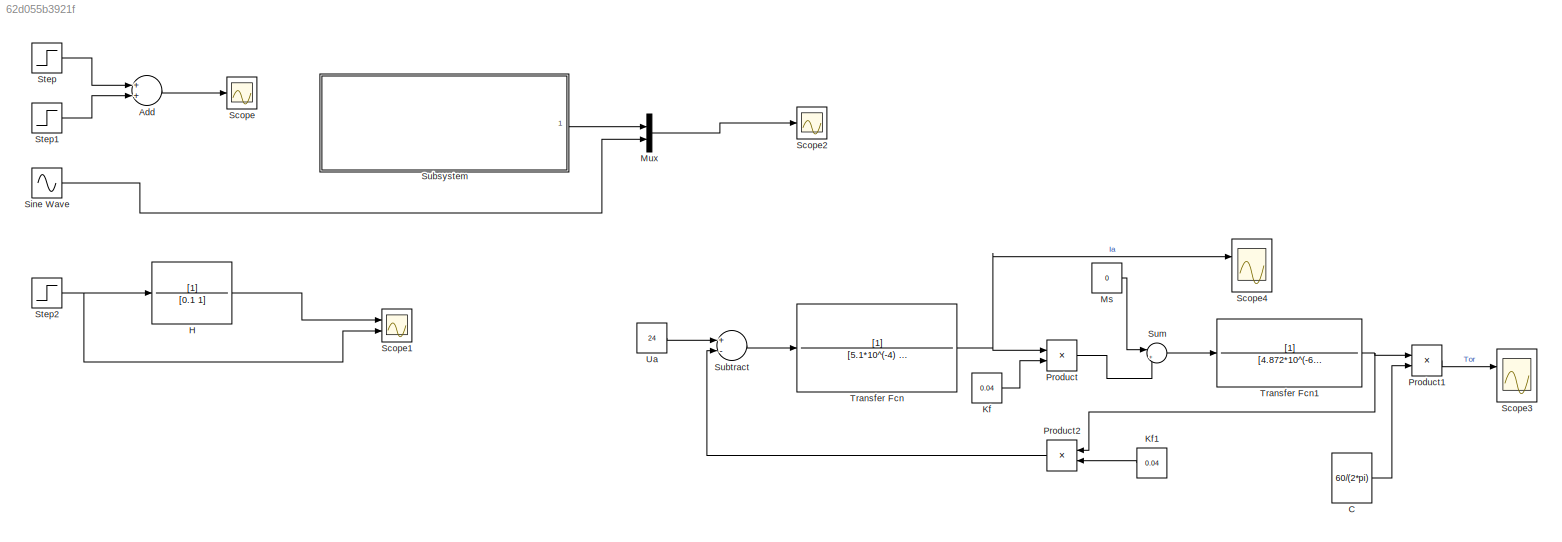
MODEL slx_62d055b3921f
KIND model
CONFIG AbsTol = auto
CONFIG EnableMultiTasking = off
CONFIG FixedStep = auto
CONFIG MaxStep = auto
CONFIG MinStep = auto
CONFIG RelTol = 1e-3
CONFIG SampleTimeConstraint = Unconstrained
CONFIG Solver = VariableStepAuto
CONFIG SolverName = VariableStepAuto
CONFIG StartTime = 0.0
CONFIG StopTime = 0.02
BLOCK [Sum] Add
  InputSameDT = off
  OutDataTypeStr = Inherit: Inherit via internal rule
  Ports = [2, 1]
  SaturateOnIntegerOverflow = off
BLOCK [Constant] C
  Value = 60/(2*pi)
BLOCK [TransferFcn] H 
  Denominator = [0.1 1]
BLOCK [Constant] Kf
  Value = 0.04
BLOCK [Constant] Kf1
  Value = 0.04
BLOCK [Constant] Ms
  Value = 0
BLOCK [Mux] Mux
  DisplayOption = bar
  Inputs = 2
  Ports = [2, 1]
BLOCK [Product] Product
  InputSameDT = off
  OutDataTypeStr = Inherit: Inherit via internal rule
  Ports = [2, 1]
  RndMeth = Floor
  SaturateOnIntegerOverflow = off
BLOCK [Product] Product1
  InputSameDT = off
  OutDataTypeStr = Inherit: Inherit via internal rule
  Ports = [2, 1]
  RndMeth = Floor
  SaturateOnIntegerOverflow = off
BLOCK [Product] Product2
  InputSameDT = off
  OutDataTypeStr = Inherit: Inherit via internal rule
  Ports = [2, 1]
  RndMeth = Floor
  SaturateOnIntegerOverflow = off
BLOCK [Scope] Scope
  Floating = off
  NumInputPorts = 1
  Ports = [1]
  ScopeSpecificationString = Simulink.scopes.TimeScopeBlockCfg('CurrentConfiguration', extmgr.ConfigurationSet(extmgr.Configuration('Core','General UI',true),extmgr.Configuration('Core','Source UI',true),extmgr.Configuration('Sources','WiredSimulink',true),extmgr.Configuration('Visuals','Time Domain',true,'SerializedDisplays',{struct('MinYLimReal','-1.00000','MaxYLimReal','1.00000','YLabelReal','','MinYLimMag','0.00000','MaxY...<+1323ch>
BLOCK [Scope] Scope1
  Floating = off
  NumInputPorts = 2
  Ports = [2]
  ScopeSpecificationString = Simulink.scopes.TimeScopeBlockCfg('CurrentConfiguration', extmgr.ConfigurationSet(extmgr.Configuration('Core','General UI',true),extmgr.Configuration('Core','Source UI',true),extmgr.Configuration('Sources','WiredSimulink',true,'DataLoggingVariableName','ScopeData1'),extmgr.Configuration('Visuals','Time Domain',true,'SerializedDisplays',{struct('MinYLimReal','-1.00000','MaxYLimReal','1.00000','YLab...<+1400ch>
BLOCK [Scope] Scope2
  Floating = off
  NumInputPorts = 1
  Ports = [1]
  ScopeSpecificationString = Simulink.scopes.TimeScopeBlockCfg('CurrentConfiguration', extmgr.ConfigurationSet(extmgr.Configuration('Core','General UI',true),extmgr.Configuration('Core','Source UI',true),extmgr.Configuration('Sources','WiredSimulink',true,'DataLoggingVariableName','ScopeData2'),extmgr.Configuration('Visuals','Time Domain',true,'SerializedDisplays',{struct('MinYLimReal','-388.84065','MaxYLimReal','388.84065','...<+1429ch>
BLOCK [Scope] Scope3
  Floating = off
  NumInputPorts = 2
  Ports = [2]
  ScopeSpecificationString = Simulink.scopes.TimeScopeBlockCfg('CurrentConfiguration', extmgr.ConfigurationSet(extmgr.Configuration('Core','General UI',true),extmgr.Configuration('Core','Source UI',true),extmgr.Configuration('Sources','WiredSimulink',true,'DataLoggingVariableName','ScopeData3'),extmgr.Configuration('Visuals','Time Domain',true,'SerializedDisplays',{struct('MinYLimReal','-716.18852','MaxYLimReal','6445.69669',...<+1427ch>
BLOCK [Scope] Scope4
  Floating = off
  NumInputPorts = 2
  Ports = [2]
  ScopeSpecificationString = Simulink.scopes.TimeScopeBlockCfg('CurrentConfiguration', extmgr.ConfigurationSet(extmgr.Configuration('Core','General UI',true),extmgr.Configuration('Core','Source UI',true),extmgr.Configuration('Sources','WiredSimulink',true,'DataLoggingVariableName','ScopeData4'),extmgr.Configuration('Visuals','Time Domain',true,'SerializedDisplays',{struct('MinYLimReal','-2.60197','MaxYLimReal','23.41769','YLa...<+1412ch>
BLOCK [Sin] Sine Wave
  Amplitude = 220*sqrt(2)
  Frequency = 60*2*pi
  Ports = [0, 1]
  SampleTime = 0
BLOCK [Step] Step
  After = 10
  SampleTime = 0
  Time = 5
BLOCK [Step] Step1
  After = 2
  SampleTime = 0
  Time = 7
BLOCK [Step] Step2
  After = 0.5
  SampleTime = 0
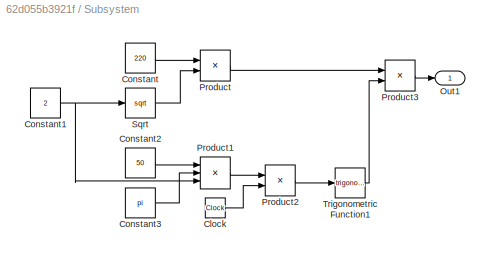
BLOCK [SubSystem] Subsystem
  Ports = [0, 1]
  RequestExecContextInheritance = off
BLOCK [Clock] Subsystem/Clock
BLOCK [Constant] Subsystem/Constant
  Value = 220
BLOCK [Constant] Subsystem/Constant1
  Value = 2
BLOCK [Constant] Subsystem/Constant2
  Value = 50
BLOCK [Constant] Subsystem/Constant3
  Value = pi
BLOCK [Outport] Subsystem/Out1
  IconDisplay = Port number
BLOCK [Product] Subsystem/Product
  InputSameDT = off
  OutDataTypeStr = Inherit: Inherit via internal rule
  Ports = [2, 1]
  RndMeth = Floor
  SaturateOnIntegerOverflow = off
BLOCK [Product] Subsystem/Product1
  InputSameDT = off
  Inputs = 3
  OutDataTypeStr = Inherit: Inherit via internal rule
  Ports = [3, 1]
  RndMeth = Floor
  SaturateOnIntegerOverflow = off
BLOCK [Product] Subsystem/Product2
  InputSameDT = off
  OutDataTypeStr = Inherit: Inherit via internal rule
  Ports = [2, 1]
  RndMeth = Floor
  SaturateOnIntegerOverflow = off
BLOCK [Product] Subsystem/Product3
  InputSameDT = off
  OutDataTypeStr = Inherit: Inherit via internal rule
  Ports = [2, 1]
  RndMeth = Floor
  SaturateOnIntegerOverflow = off
BLOCK [Sqrt] Subsystem/Sqrt
BLOCK [Trigonometry] Subsystem/Trigonometric Function1
  Ports = [1, 1]
BLOCK [Sum] Subtract
  InputSameDT = off
  Inputs = +-
  OutDataTypeStr = Inherit: Inherit via internal rule
  Ports = [2, 1]
  SaturateOnIntegerOverflow = off
BLOCK [Sum] Sum
  IconShape = round
  InputSameDT = off
  Inputs = |++
  OutDataTypeStr = Inherit: Inherit via internal rule
  Ports = [2, 1]
  SaturateOnIntegerOverflow = off
BLOCK [TransferFcn] Transfer Fcn
  Denominator = [5.1*10^(-4) 0.85]
BLOCK [TransferFcn] Transfer Fcn1
  Denominator = [4.872*10^(-6) 0]
BLOCK [Constant] Ua
  Value = 24
LINE Add:1 -> Scope:1
LINE C:1 -> Product1:2
LINE H :1 -> Scope1:1
LINE Kf1:1 -> Product2:2
LINE Kf:1 -> Product:2
LINE Ms:1 -> Sum:1
LINE Mux:1 -> Scope2:1
LINE Product1:1 -> Scope3:1
LINE Product2:1 -> Subtract:2
LINE Product:1 -> Sum:2
LINE Sine Wave:1 -> Mux:2
LINE Step1:1 -> Add:2
NET Step2:1 -> H :1, Scope1:2
LINE Step:1 -> Add:1
LINE Subsystem/Clock:1 -> Subsystem/Product2:2
NET Subsystem/Constant1:1 -> Subsystem/Product1:3, Subsystem/Sqrt:1
LINE Subsystem/Constant2:1 -> Subsystem/Product1:1
LINE Subsystem/Constant3:1 -> Subsystem/Product1:2
LINE Subsystem/Constant:1 -> Subsystem/Product:1
LINE Subsystem/Product1:1 -> Subsystem/Product2:1
LINE Subsystem/Product2:1 -> Subsystem/Trigonometric Function1:1
LINE Subsystem/Product3:1 -> Subsystem/Out1:1
LINE Subsystem/Product:1 -> Subsystem/Product3:1
LINE Subsystem/Sqrt:1 -> Subsystem/Product:2
LINE Subsystem/Trigonometric Function1:1 -> Subsystem/Product3:2
LINE Subsystem:1 -> Mux:1
LINE Subtract:1 -> Transfer Fcn:1
LINE Sum:1 -> Transfer Fcn1:1
NET Transfer Fcn1:1 -> Product1:1, Product2:1
NET Transfer Fcn:1 -> Product:1, Scope4:1
LINE Ua:1 -> Subtract:1
note: NET lines group one-source signal fan-out (src -> all destinations, sorted); 1:1 wires keep LINE
